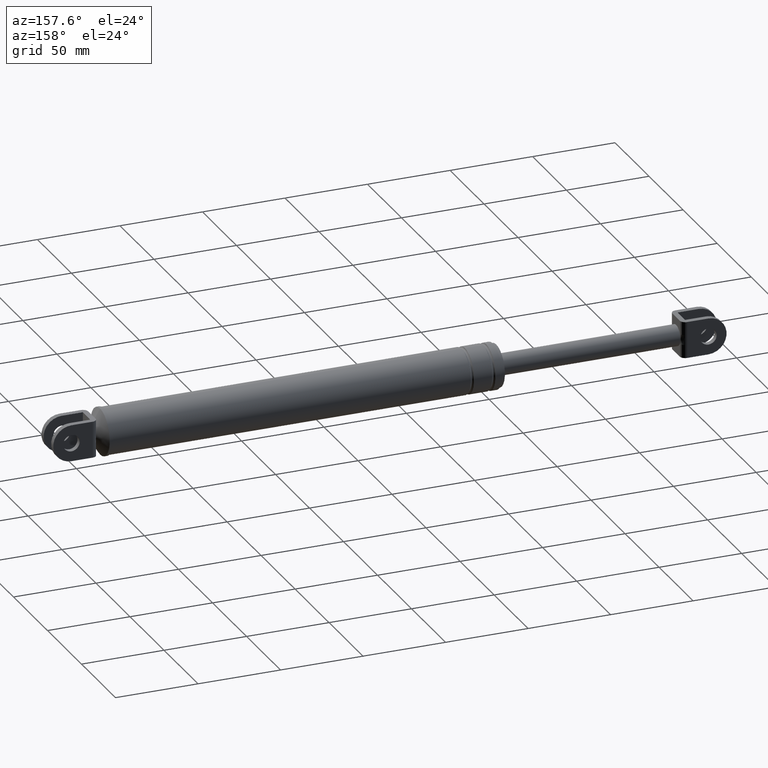
[diagram: clean part render]
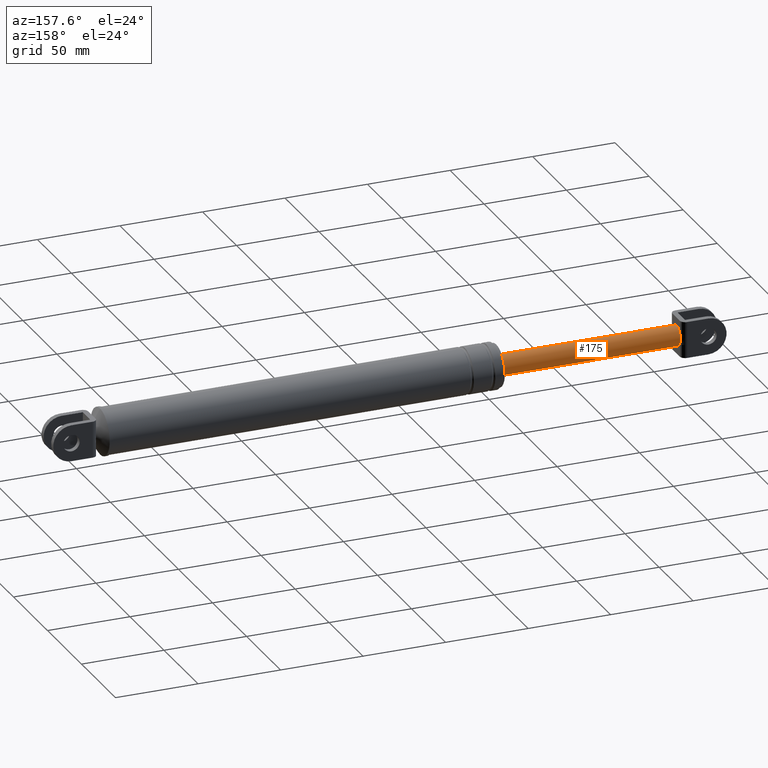
[diagram: same view with one face highlighted and labeled with its STEP entity id]
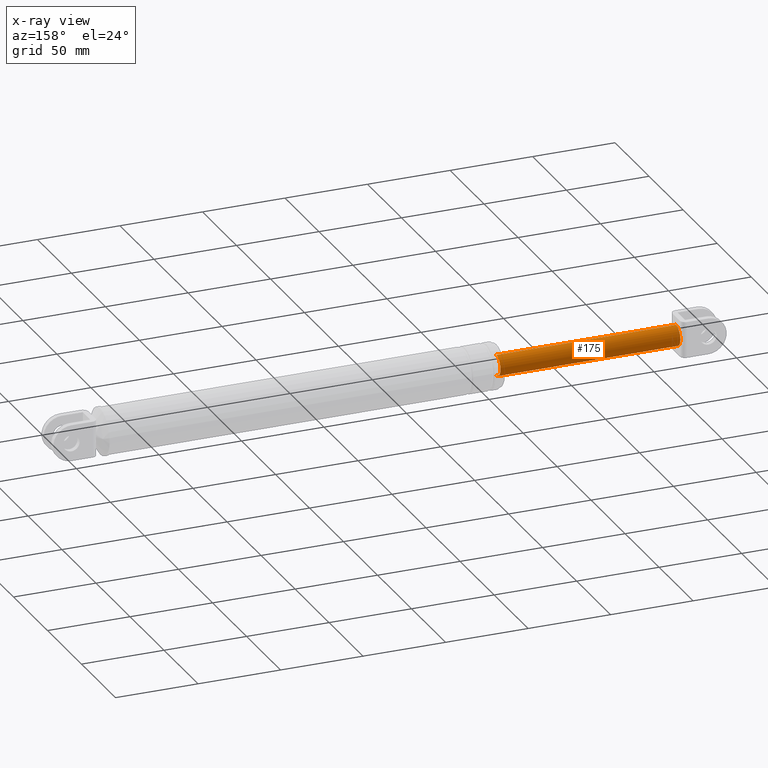
[diagram: x-ray of the same camera — body ghosted, the highlighted face saturated]
A machine part, auxiliary view. The second image highlights one B-rep face of the part: STEP entity #175.
The next image is the same camera in x-ray: the body ghosted, the highlighted face saturated — about 0% of this face is hidden behind the body in this view.
In plain terms, the highlighted cylindrical surface (edge-blend (fillet) strip) has radius 6.25 mm, axis along (-1, -0, 0).
Its self-contained STEP definition (entity closure, byte-faithful):
#175=ADVANCED_FACE('',(#817),#816,.T.);
#816=CYLINDRICAL_SURFACE('',#1927,6.25000000000E+000);
#817=FACE_OUTER_BOUND('',#1928,.T.);
#1924=CARTESIAN_POINT('',(2.66597353584E+001,6.95746800356E-015,1.79725493158E+002));
#1925=DIRECTION('',(-1.00000000000E+000,-1.60777467769E-015,2.85124297047E-029));
#1926=DIRECTION('',(2.35425205992E-030,-1.91983878045E-014,-1.00000000000E+000));
#1927=AXIS2_PLACEMENT_3D('',#1924,#1925,#1926);
#1928=EDGE_LOOP('',(#2235,#2236,#2237,#2238,#2239,#2240));
#2235=ORIENTED_EDGE('',*,*,#2390,.F.);
#2236=ORIENTED_EDGE('',*,*,#2395,.T.);
#2237=ORIENTED_EDGE('',*,*,#2356,.F.);
#2238=ORIENTED_EDGE('',*,*,#2345,.F.);
#2239=ORIENTED_EDGE('',*,*,#2360,.F.);
#2240=ORIENTED_EDGE('',*,*,#2396,.F.);
#2345=EDGE_CURVE('',#3082,#3034,#3089,.T.);
#2356=EDGE_CURVE('',#3034,#3163,#3164,.T.);
#2360=EDGE_CURVE('',#3182,#3082,#3189,.T.);
#2390=EDGE_CURVE('',#3382,#3381,#3389,.T.);
#2395=EDGE_CURVE('',#3382,#3163,#3419,.T.);
#2396=EDGE_CURVE('',#3381,#3182,#3425,.T.);
#3034=VERTEX_POINT('',#3833);
#3082=VERTEX_POINT('',#3870);
#3089=CIRCLE('',#3878,6.25000000000E+000);
#3163=VERTEX_POINT('',#3929);
#3164=CIRCLE('',#3933,6.25000000000E+000);
#3182=VERTEX_POINT('',#3941);
#3189=CIRCLE('',#3949,6.25000000000E+000);
#3381=VERTEX_POINT('',#4063);
#3382=VERTEX_POINT('',#4064);
#3389=CIRCLE('',#4072,6.25000000000E+000);
#3419=(BOUNDED_CURVE() B_SPLINE_CURVE(1,(#4081,#4082),.UNSPECIFIED.,.F.,.F.) B_SPLINE_CURVE_WITH_KNOTS((2,2),(7.75193799282E-002,9.22480620316E-001),.UNSPECIFIED.) CURVE() GEOMETRIC_REPRESENTATION_ITEM() RATIONAL_B_SPLINE_CURVE((1.00000000000E+000,1.00000000000E+000)) REPRESENTATION_ITEM('') );
#3425=(BOUNDED_CURVE() B_SPLINE_CURVE(1,(#4083,#4084),.UNSPECIFIED.,.F.,.F.) B_SPLINE_CURVE_WITH_KNOTS((2,2),(7.75193798450E-002,9.22480620155E-001),.UNSPECIFIED.) CURVE() GEOMETRIC_REPRESENTATION_ITEM() RATIONAL_B_SPLINE_CURVE((7.50000000000E-001,7.50000000000E-001)) REPRESENTATION_ITEM('') );
#3833=CARTESIAN_POINT('',(3.66597353584E+001,5.49999700000E+000,1.76756902078E+002));
#3870=CARTESIAN_POINT('',(3.66597353584E+001,5.49999700000E+000,1.82694084238E+002));
#3875=CARTESIAN_POINT('',(3.66597353584E+001,-1.15463194561E-014,1.79725493158E+002));
#3876=DIRECTION('',(-1.00000000000E+000,-4.26325641456E-016,7.89866197761E-016));
#3877=DIRECTION('',(-0.00000000000E+000,-8.79999520000E-001,-4.74974572793E-001));
#3878=AXIS2_PLACEMENT_3D('',#3875,#3876,#3877);
#3929=CARTESIAN_POINT('',(3.66597353584E+001,4.17619826425E-012,1.73475493158E+002));
#3930=CARTESIAN_POINT('',(3.66597353584E+001,-1.09912079438E-012,1.79725493158E+002));
#3931=DIRECTION('',(-1.00000000000E+000,6.13440106908E-015,-2.99582408938E-015));
#3932=DIRECTION('',(-6.82121026330E-015,-8.79999520000E-001,4.74974572793E-001));
#3933=AXIS2_PLACEMENT_3D('',#3930,#3931,#3932);
#3941=CARTESIAN_POINT('',(3.66597353584E+001,7.57710260221E-007,1.85975493158E+002));
#3946=CARTESIAN_POINT('',(3.66597353584E+001,2.35367281221E-014,1.79725493158E+002));
#3947=DIRECTION('',(-1.00000000000E+000,2.63478595248E-016,4.88154631067E-016));
#3948=DIRECTION('',(-0.00000000000E+000,8.79999520000E-001,-4.74974572793E-001));
#3949=AXIS2_PLACEMENT_3D('',#3946,#3947,#3948);
#4063=CARTESIAN_POINT('',(1.45659735358E+002,1.98282654649E-013,1.85975493158E+002));
#4064=CARTESIAN_POINT('',(1.45659735358E+002,1.99248025486E-013,1.73475493158E+002));
#4069=CARTESIAN_POINT('',(1.45659735358E+002,1.98282654649E-013,1.79725493158E+002));
#4070=DIRECTION('',(1.00000000000E+000,0.00000000000E+000,-0.00000000000E+000));
#4071=DIRECTION('',(0.00000000000E+000,-1.22460635382E-016,1.00000000000E+000));
#4072=AXIS2_PLACEMENT_3D('',#4069,#4070,#4071);
#4081=CARTESIAN_POINT('',(1.45659735348E+002,7.82927308535E-014,1.73475493158E+002));
#4082=CARTESIAN_POINT('',(3.66597353377E+001,-9.69547090310E-014,1.73475493158E+002));
#4083=CARTESIAN_POINT('',(1.45659735358E+002,3.18732120800E-013,1.85975493158E+002));
#4084=CARTESIAN_POINT('',(3.66597353584E+001,1.43120657444E-013,1.85975493158E+002));